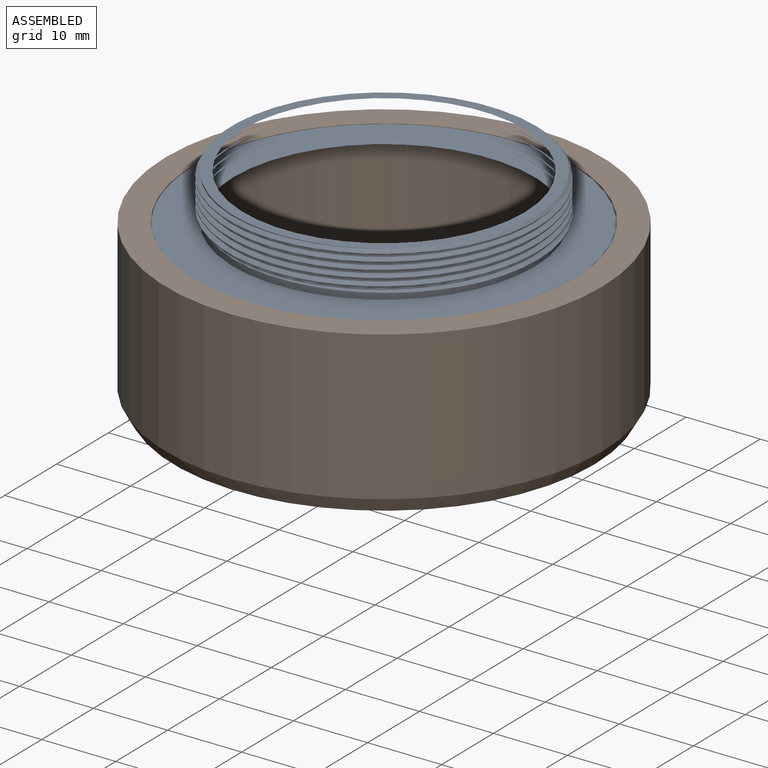
[diagram: assembled view]
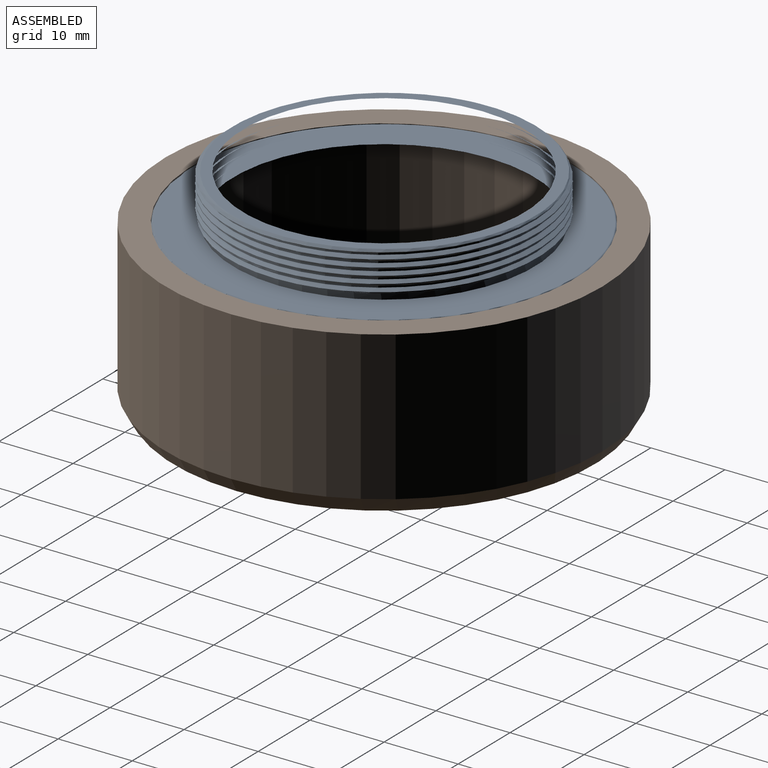
[diagram: assembled view, second angle]
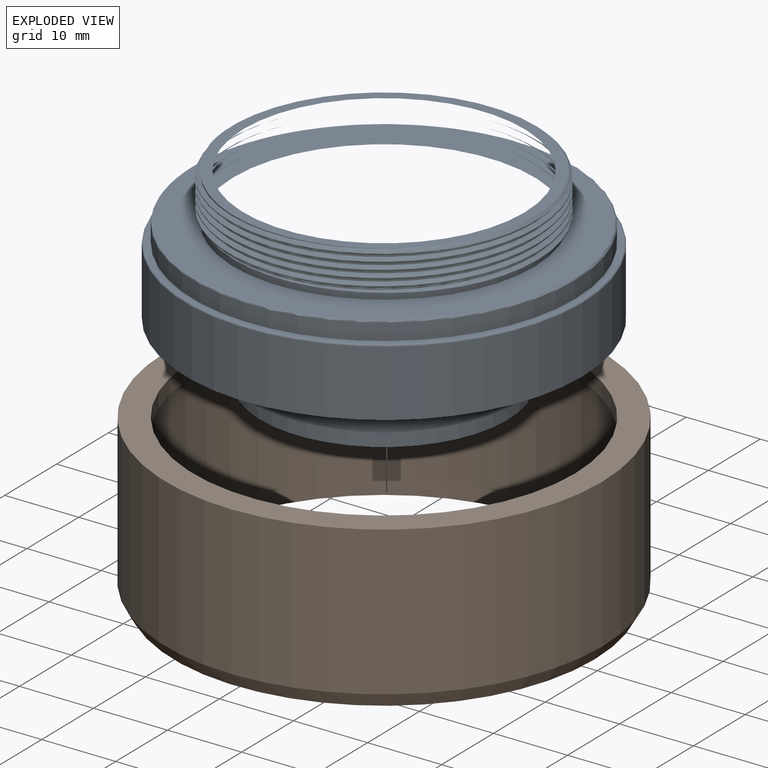
[diagram: exploded view]
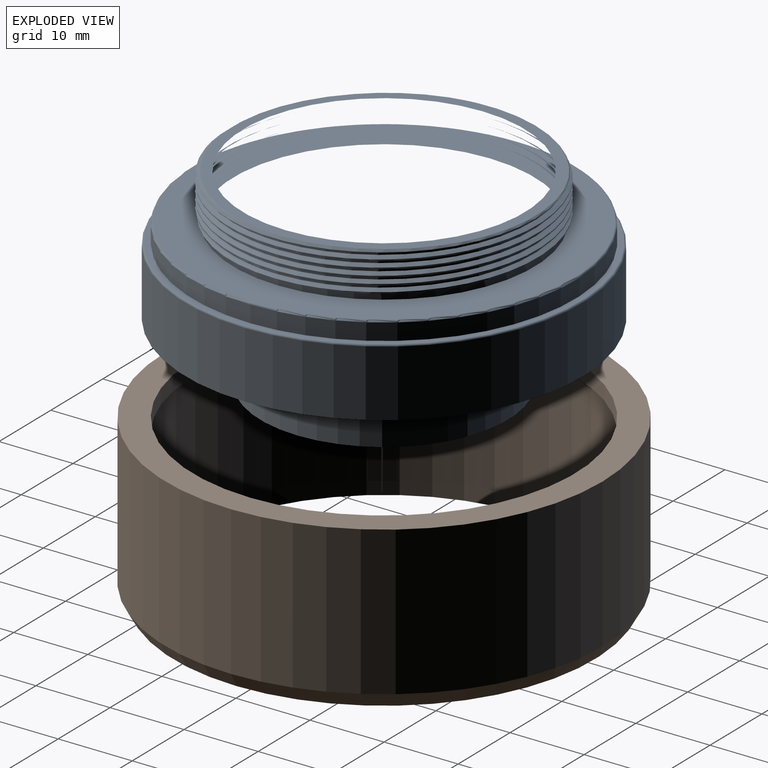
[diagram: exploded view, second angle]
ASSEMBLY  parts=2 mates=2
PART A: 25 faces, bbox 58.6x58.6x27.2 mm
  f0: cylinder r=13.5mm len=27mm, axis (0,0,1), area 233.3mm2, adj f1,f21
  f1: plane 33.4x33.4mm, normal (0,0,-1), area 303.6mm2, adj f0,f2
  f2: cylinder r=16.7mm len=33.4mm, axis (0,0,1), area 839.4mm2, adj f1,f3
  f3: plane 53.6x53.6mm, normal (0,0,-1), area 1380.3mm2, adj f2,f4
  f4: cylinder r=26.8mm len=53.6mm, axis (0,0,1), area 1507.1mm2, adj f3,f5
  f5: torus R=26.55mm, axis (0,0,1), area 65.9mm2, adj f4,f6
  f6: plane 53.1x53.1mm, normal (0,0,1), area 123.3mm2, adj f5,f7
  f7: cylinder r=25.8mm len=51.6mm, axis (0,0,1), area 364.7mm2, adj f6,f8
  f8: torus R=25.55mm, axis (0,0,1), area 63.4mm2, adj f7,f9
  f9: plane 51.1x51.1mm, normal (0,0,1), area 749.8mm2, adj f8,f10
  f10: cylinder r=20.35mm len=40.7mm, axis (0,0,1), area 143.9mm2, adj f9,f11,f16,f23,f24
  f11: cylinder r=20.35mm len=40.7mm, axis (0,0,1), area 32mm2, adj f10,f12,f23,f24
  f12: cylinder r=20.35mm len=40.7mm, axis (0,0,1), area 32mm2, adj f11,f13,f23,f24
  f13: cylinder r=20.35mm len=40.7mm, axis (0,0,1), area 32mm2, adj f12,f14,f23,f24
  f14: cylinder r=20.35mm len=40.7mm, axis (0,0,1), area 32mm2, adj f13,f15,f23,f24
  f15: cylinder r=20.35mm len=40.7mm, axis (0,0,1), area 24mm2, adj f14,f18,f23,f24
  f16: plane 41.71x35.98mm, normal (0,0,-1), area 30.6mm2, adj f10,f22,f23,f24
  f17: cone r=21mm half-angle=45deg, axis (0,0,-1), area 25.4mm2, adj f18,f22,f23,f24
  f18: plane 41.04x40.89mm, normal (0,0,1), area 179.7mm2, adj f15,f17,f19,f23,f24
  f19: cone r=15mm half-angle=12.6deg, axis (0,0,1), area 1964.3mm2, adj f18,f20
  f20: cylinder r=15mm len=30mm, axis (0,0,1), area 494.8mm2, adj f19,f21
  f21: plane 30x30mm, normal (0,0,1), area 134.3mm2, adj f0,f20
  f22: cylinder r=20.89mm len=41.78mm, axis (0,0,1), area 81.3mm2, adj f16,f17,f23,f24
  f23: bspline ~48.25x41.78mm, area 284.4mm2, adj f10,f11,f12,f13,f14,f15,f16,f17
  f24: bspline ~41.75x41.72mm, area 421.3mm2, adj f10,f11,f12,f13,f14,f15,f16,f17
PART B: 8 faces, bbox 59x59x22 mm
  f0: cone r=28.4mm half-angle=30deg, axis (0,0,1), area 400.2mm2, adj f1,f7
  f1: cylinder r=29.5mm len=59mm, axis (0,0,1), area 3724.6mm2, adj f0,f2
  f2: plane 59x59mm, normal (0,0,1), area 642.8mm2, adj f1,f3
  f3: cylinder r=25.8mm len=51.6mm, axis (0,0,1), area 324.2mm2, adj f2,f4
  f4: cone r=26.3mm half-angle=45deg, axis (0,0,-1), area 115.7mm2, adj f3,f5
  f5: plane 53.6x53.6mm, normal (0,0,-1), area 83.4mm2, adj f4,f6
  f6: cylinder r=26.8mm len=53.6mm, axis (0,0,1), area 3283.6mm2, adj f5,f7
  f7: plane 56.8x56.8mm, normal (0,0,-1), area 277.5mm2, adj f0,f6
PLACE A t=(1.29,-10.11,26.6)mm
PLACE B t=(1.29,-10.11,20.47)mm
MATE planar A.f0 <-> B.f0  axis (0,0,1) through (1.29,-10.11,4.6)mm
MATE cylindrical B.f0 <-> A.f0  axis (0,0,1) through (1.29,-10.11,6.1)mm
